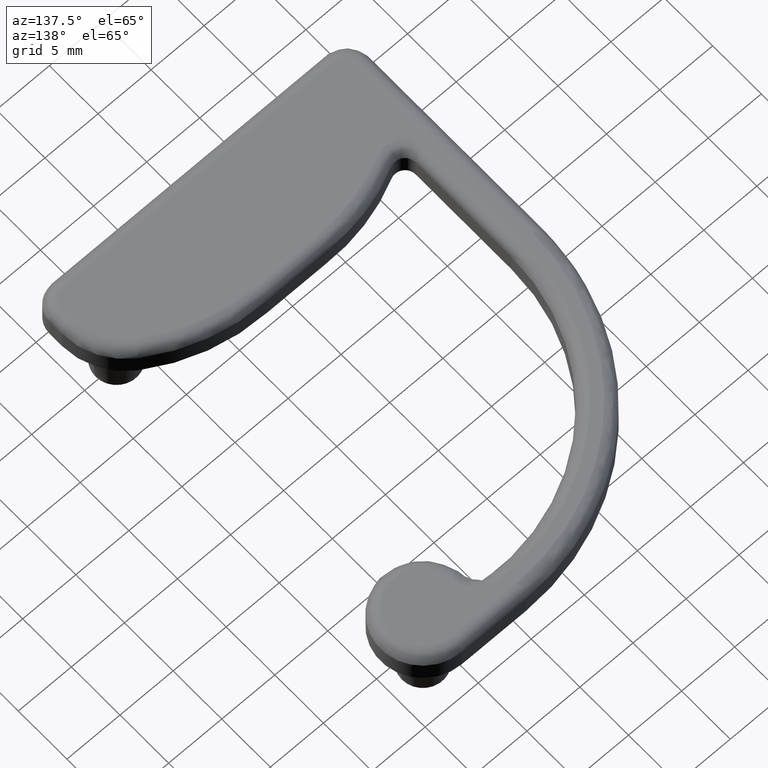
[diagram: clean part render]
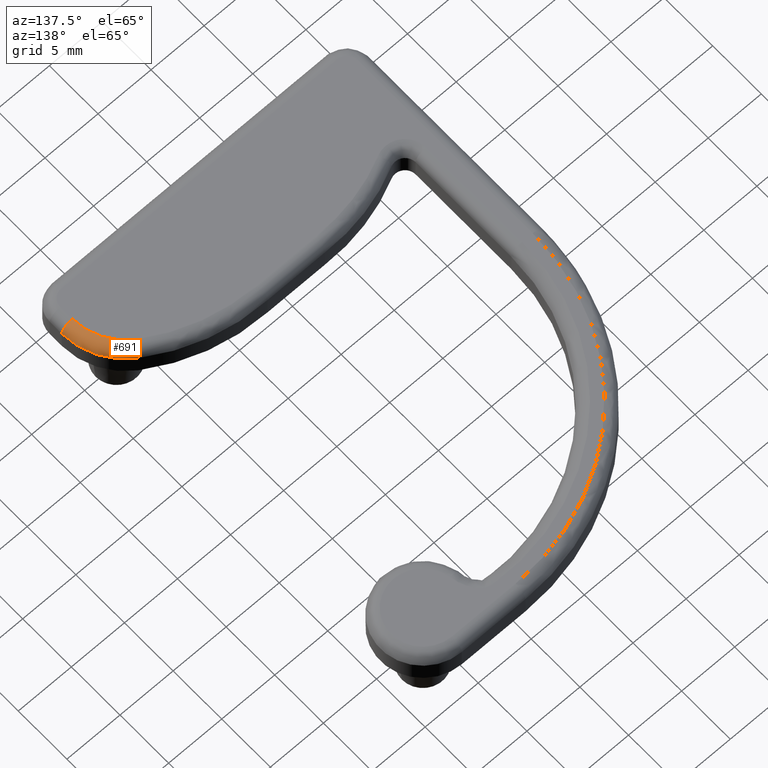
[diagram: same view with one face highlighted and labeled with its STEP entity id]
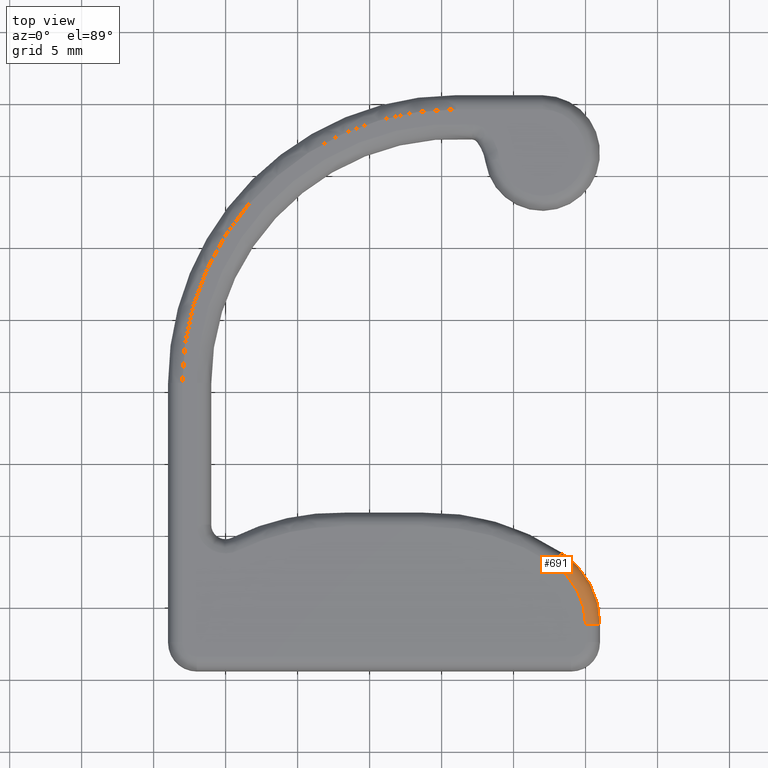
[diagram: same view with one face highlighted and labeled with its STEP entity id]
A machine part, auxiliary view. The second image highlights one B-rep face of the part: STEP entity #691.
A second angle (top view) of the same face is appended — the face is thin or edge-on in the first view.
In plain terms, the highlighted face is a freeform B-spline surface patch.
Its self-contained STEP definition (entity closure, byte-faithful):
#42=B_SPLINE_SURFACE_WITH_KNOTS('',3,3,((#1337,#1338,#1339,#1340,#1341,
#1342,#1343),(#1344,#1345,#1346,#1347,#1348,#1349,#1350),(#1351,#1352,#1353,
#1354,#1355,#1356,#1357),(#1358,#1359,#1360,#1361,#1362,#1363,#1364),(#1365,
#1366,#1367,#1368,#1369,#1370,#1371),(#1372,#1373,#1374,#1375,#1376,#1377,
#1378),(#1379,#1380,#1381,#1382,#1383,#1384,#1385)),.UNSPECIFIED.,.F.,.F.,
 .F.,(4,1,1,1,4),(4,1,1,1,4),(0.,0.390180644032257,0.780361288064513,1.17054193209677,
1.56130475698401),(-0.000582180854988934,1.36736946888185,2.73473893776369,
4.10210840664553,5.47006005638237),.UNSPECIFIED.);
#85=FACE_OUTER_BOUND('',#136,.T.);
#136=EDGE_LOOP('',(#578,#579,#580,#581));
#189=CIRCLE('',#739,0.999999999999998);
#199=CIRCLE('',#750,5.);
#208=CIRCLE('',#775,6.);
#209=CIRCLE('',#777,1.);
#327=VERTEX_POINT('',#1243);
#328=VERTEX_POINT('',#1245);
#341=VERTEX_POINT('',#1273);
#354=VERTEX_POINT('',#1330);
#392=EDGE_CURVE('',#328,#327,#189,.T.);
#407=EDGE_CURVE('',#327,#341,#199,.T.);
#438=EDGE_CURVE('',#328,#354,#208,.T.);
#439=EDGE_CURVE('',#354,#341,#209,.T.);
#578=ORIENTED_EDGE('',*,*,#392,.T.);
#579=ORIENTED_EDGE('',*,*,#407,.T.);
#580=ORIENTED_EDGE('',*,*,#439,.F.);
#581=ORIENTED_EDGE('',*,*,#438,.F.);
#691=ADVANCED_FACE('',(#85),#42,.T.);
#739=AXIS2_PLACEMENT_3D('',#1246,#866,#867);
#750=AXIS2_PLACEMENT_3D('',#1275,#893,#894);
#775=AXIS2_PLACEMENT_3D('',#1335,#965,#966);
#777=AXIS2_PLACEMENT_3D('',#1386,#969,#970);
#866=DIRECTION('center_axis',(0.829747522958654,-0.558138914737163,4.716569E-14));
#867=DIRECTION('ref_axis',(0.558138914737163,0.829747522958654,3.172652E-14));
#893=DIRECTION('center_axis',(0.,0.,-1.));
#894=DIRECTION('ref_axis',(-1.,0.,0.));
#965=DIRECTION('center_axis',(0.,0.,-1.));
#966=DIRECTION('ref_axis',(-1.,0.,0.));
#969=DIRECTION('center_axis',(1.75673898E-7,-0.999999999999985,9.98590499999999E-21));
#970=DIRECTION('ref_axis',(0.999999999999985,1.75673898E-7,5.684342E-14));
#1243=CARTESIAN_POINT('',(22.7906943568071,2.88124034411931,3.0000000000013));
#1245=CARTESIAN_POINT('',(23.3488332715443,3.71098786707796,2.00000000000133));
#1246=CARTESIAN_POINT('Origin',(22.790694356806,2.88124034411749,2.0000000000013));
#1273=CARTESIAN_POINT('',(24.99999978312,-1.26749639230695,3.00000000000142));
#1275=CARTESIAN_POINT('Origin',(19.9999997831201,-1.26749727067579,3.00000000000114));
#1330=CARTESIAN_POINT('',(25.99999978312,-1.26749621663316,2.00000000000148));
#1335=CARTESIAN_POINT('Origin',(19.9999997831201,-1.26749727067579,2.00000000000114));
#1337=CARTESIAN_POINT('Ctrl Pts',(23.348315939154,3.71133581705257,2.00000000000133));
#1338=CARTESIAN_POINT('Ctrl Pts',(23.7535218542166,3.4388312916882,2.00000000000135));
#1339=CARTESIAN_POINT('Ctrl Pts',(24.500054519929,2.79173319678647,2.00000000000139));
#1340=CARTESIAN_POINT('Ctrl Pts',(25.348868511846,1.58090827004329,2.00000000000144));
#1341=CARTESIAN_POINT('Ctrl Pts',(25.8797916177346,0.200798545517661,2.00000000000147));
#1342=CARTESIAN_POINT('Ctrl Pts',(26.0000508995005,-0.779805691955491,2.00000000000148));
#1343=CARTESIAN_POINT('Ctrl Pts',(25.9999997505224,-1.26811967632369,2.00000000000148));
#1344=CARTESIAN_POINT('Ctrl Pts',(23.348315939154,3.71133581705257,2.13006021467875));
#1345=CARTESIAN_POINT('Ctrl Pts',(23.7535218542166,3.4388312916882,2.13006021467877));
#1346=CARTESIAN_POINT('Ctrl Pts',(24.500054519929,2.79173319678647,2.13006021467881));
#1347=CARTESIAN_POINT('Ctrl Pts',(25.348868511846,1.58090827004329,2.13006021467886));
#1348=CARTESIAN_POINT('Ctrl Pts',(25.8797916177346,0.200798545517661,2.13006021467889));
#1349=CARTESIAN_POINT('Ctrl Pts',(26.0000508995005,-0.779805691955491,2.1300602146789));
#1350=CARTESIAN_POINT('Ctrl Pts',(25.9999997505224,-1.26811967632369,2.1300602146789));
#1351=CARTESIAN_POINT('Ctrl Pts',(23.3192755600192,3.66815375365755,2.3930278173446));
#1352=CARTESIAN_POINT('Ctrl Pts',(23.720967071766,3.39801269529084,2.39302781734462));
#1353=CARTESIAN_POINT('Ctrl Pts',(24.4610249631027,2.75652696587003,2.39302781734466));
#1354=CARTESIAN_POINT('Ctrl Pts',(25.3024770814715,1.55620368033988,2.39302781734472));
#1355=CARTESIAN_POINT('Ctrl Pts',(25.8287954225864,0.18806382597589,2.39302781734474));
#1356=CARTESIAN_POINT('Ctrl Pts',(25.9480116800457,-0.784035504101921,2.39302781734475));
#1357=CARTESIAN_POINT('Ctrl Pts',(25.9479609746893,-1.26811427811899,2.39302781734475));
#1358=CARTESIAN_POINT('Ctrl Pts',(23.1950818750284,3.48348193674899,2.72541291147427));
#1359=CARTESIAN_POINT('Ctrl Pts',(23.5817437380125,3.22344844875633,2.72541291147429));
#1360=CARTESIAN_POINT('Ctrl Pts',(24.2941116985302,2.60596448416634,2.72541291147433));
#1361=CARTESIAN_POINT('Ctrl Pts',(25.1040801299902,1.45055237264822,2.72541291147437));
#1362=CARTESIAN_POINT('Ctrl Pts',(25.6107057975659,0.133602699973491,2.72541291147441));
#1363=CARTESIAN_POINT('Ctrl Pts',(25.725461471657,-0.802124660405486,2.72541291147441));
#1364=CARTESIAN_POINT('Ctrl Pts',(25.7254126634872,-1.26809119223123,2.72541291147441));
#1365=CARTESIAN_POINT('Ctrl Pts',(23.0095012237172,3.20752977329356,2.94807191053694));
#1366=CARTESIAN_POINT('Ctrl Pts',(23.373704521223,2.96259986720466,2.94807191053696));
#1367=CARTESIAN_POINT('Ctrl Pts',(24.0446958578283,2.38098135865822,2.948071910537));
#1368=CARTESIAN_POINT('Ctrl Pts',(24.8076187158952,1.29267930128593,2.94807191053704));
#1369=CARTESIAN_POINT('Ctrl Pts',(25.2848179341168,0.052222304219753,2.94807191053707));
#1370=CARTESIAN_POINT('Ctrl Pts',(25.3929082293141,-0.829154999417769,2.94807191053707));
#1371=CARTESIAN_POINT('Ctrl Pts',(25.3928622560798,-1.26805669535575,2.94807191053707));
#1372=CARTESIAN_POINT('Ctrl Pts',(22.8626247241852,2.98912937691471,3.00007759242117));
#1373=CARTESIAN_POINT('Ctrl Pts',(23.2090533482072,2.75615309435685,3.00007759242119));
#1374=CARTESIAN_POINT('Ctrl Pts',(23.8472974472112,2.20292004841427,3.00007759242122));
#1375=CARTESIAN_POINT('Ctrl Pts',(24.5729864175337,1.1677317707744,3.00007759242126));
#1376=CARTESIAN_POINT('Ctrl Pts',(25.0268962796492,-0.0121856368796272,
3.00007759242129));
#1377=CARTESIAN_POINT('Ctrl Pts',(25.1297113076618,-0.850547970868383,3.00007759242129));
#1378=CARTESIAN_POINT('Ctrl Pts',(25.1296675781173,-1.26802939304659,3.00007759242129));
#1379=CARTESIAN_POINT('Ctrl Pts',(22.7899383642157,2.88104721346944,2.99999982621368));
#1380=CARTESIAN_POINT('Ctrl Pts',(23.1275706435582,2.65398654971845,2.9999998262137));
#1381=CARTESIAN_POINT('Ctrl Pts',(23.7496087633355,2.11480092429105,2.99999982621374));
#1382=CARTESIAN_POINT('Ctrl Pts',(24.4568713974077,1.1058976365936,2.99999982621378));
#1383=CARTESIAN_POINT('Ctrl Pts',(24.8992558042817,-0.0440598904638637,
2.9999998262138));
#1384=CARTESIAN_POINT('Ctrl Pts',(24.999460203836,-0.861134941749583,2.99999982621381));
#1385=CARTESIAN_POINT('Ctrl Pts',(24.9994175846506,-1.26801588165792,2.99999982621381));
#1386=CARTESIAN_POINT('Origin',(24.99999978312,-1.26749639230684,2.00000000000142));